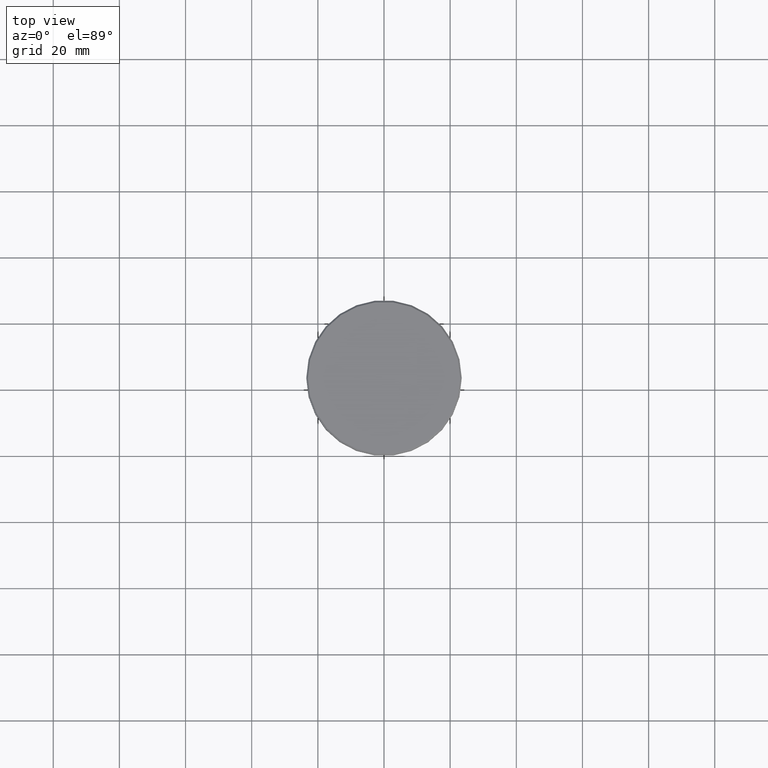
[diagram: clean part render]
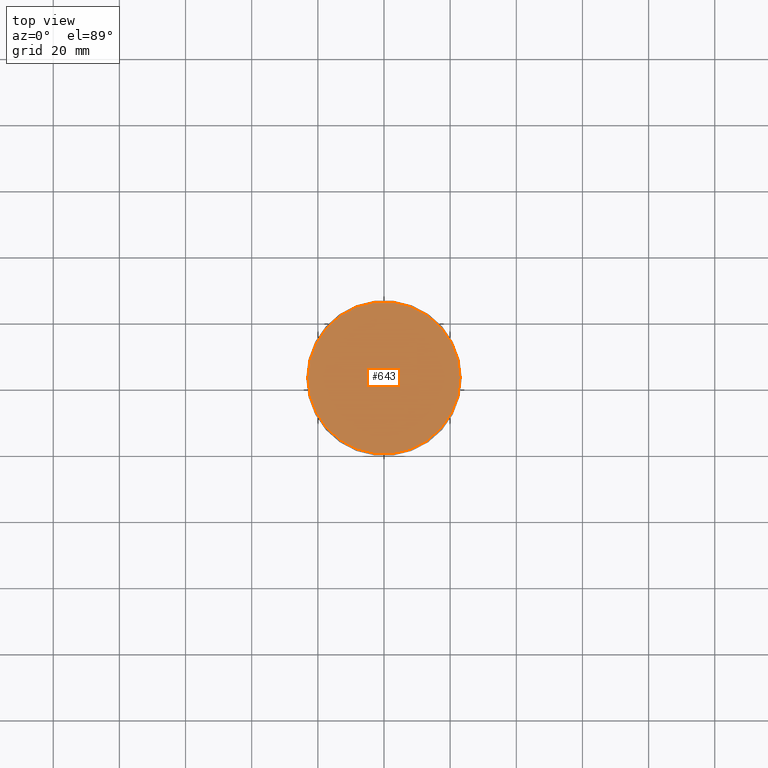
[diagram: same view with one face highlighted and labeled with its STEP entity id]
A machine part, top view. The second image highlights one B-rep face of the part: STEP entity #643.
In plain terms, the highlighted planar face has unit normal (0, -0, 1).
Its self-contained STEP definition (entity closure, byte-faithful):
#37 = DIRECTION ( 'NONE',  ( 1.000000000000000000, 0.000000000000000000, 0.000000000000000000 ) ) ;
#129 = ORIENTED_EDGE ( 'NONE', *, *, #676, .T. ) ;
#153 = CARTESIAN_POINT ( 'NONE',  ( 0.000000000000000000, 0.000000000000000000, 0.000000000000000000 ) ) ;
#157 = PLANE ( 'NONE',  #830 ) ;
#163 = CIRCLE ( 'NONE', #771, 23.00000000000002487 ) ;
#200 = CARTESIAN_POINT ( 'NONE',  ( 23.00000000000002487, 2.847303808017597717E-15, 0.000000000000000000 ) ) ;
#212 = ORIENTED_EDGE ( 'NONE', *, *, #733, .T. ) ;
#276 = FACE_OUTER_BOUND ( 'NONE', #296, .T. ) ;
#296 = EDGE_LOOP ( 'NONE', ( #212, #129 ) ) ;
#333 = VERTEX_POINT ( 'NONE', #200 ) ;
#424 = CIRCLE ( 'NONE', #1021, 23.00000000000002487 ) ;
#433 = DIRECTION ( 'NONE',  ( 1.000000000000000000, 0.000000000000000000, 0.000000000000000000 ) ) ;
#514 = DIRECTION ( 'NONE',  ( -0.000000000000000000, -0.000000000000000000, 1.000000000000000000 ) ) ;
#563 = DIRECTION ( 'NONE',  ( -0.000000000000000000, -0.000000000000000000, 1.000000000000000000 ) ) ;
#643 = ADVANCED_FACE ( 'NONE', ( #276 ), #157, .T. ) ;
#665 = CARTESIAN_POINT ( 'NONE',  ( -23.00000000000002487, 0.000000000000000000, 0.000000000000000000 ) ) ;
#676 = EDGE_CURVE ( 'NONE', #333, #984, #163, .T. ) ;
#709 = DIRECTION ( 'NONE',  ( 0.000000000000000000, -0.000000000000000000, 1.000000000000000000 ) ) ;
#733 = EDGE_CURVE ( 'NONE', #984, #333, #424, .T. ) ;
#771 = AXIS2_PLACEMENT_3D ( 'NONE', #804, #514, #433 ) ;
#804 = CARTESIAN_POINT ( 'NONE',  ( 0.000000000000000000, 0.000000000000000000, 0.000000000000000000 ) ) ;
#822 = DIRECTION ( 'NONE',  ( 1.000000000000000000, 0.000000000000000000, 0.000000000000000000 ) ) ;
#830 = AXIS2_PLACEMENT_3D ( 'NONE', #153, #709, #822 ) ;
#939 = CARTESIAN_POINT ( 'NONE',  ( 0.000000000000000000, 0.000000000000000000, 0.000000000000000000 ) ) ;
#984 = VERTEX_POINT ( 'NONE', #665 ) ;
#1021 = AXIS2_PLACEMENT_3D ( 'NONE', #939, #563, #37 ) ;